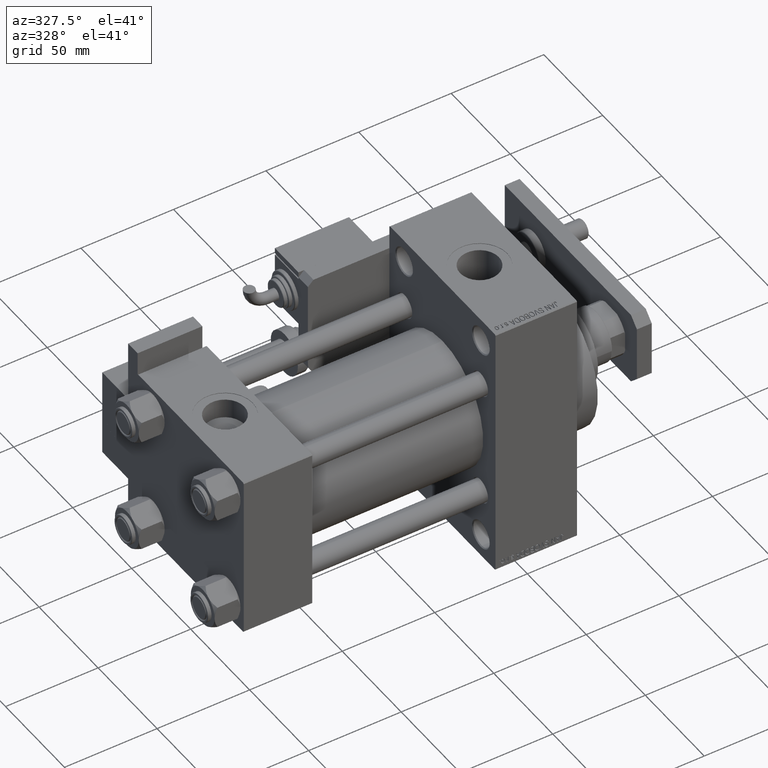
[diagram: clean part render]
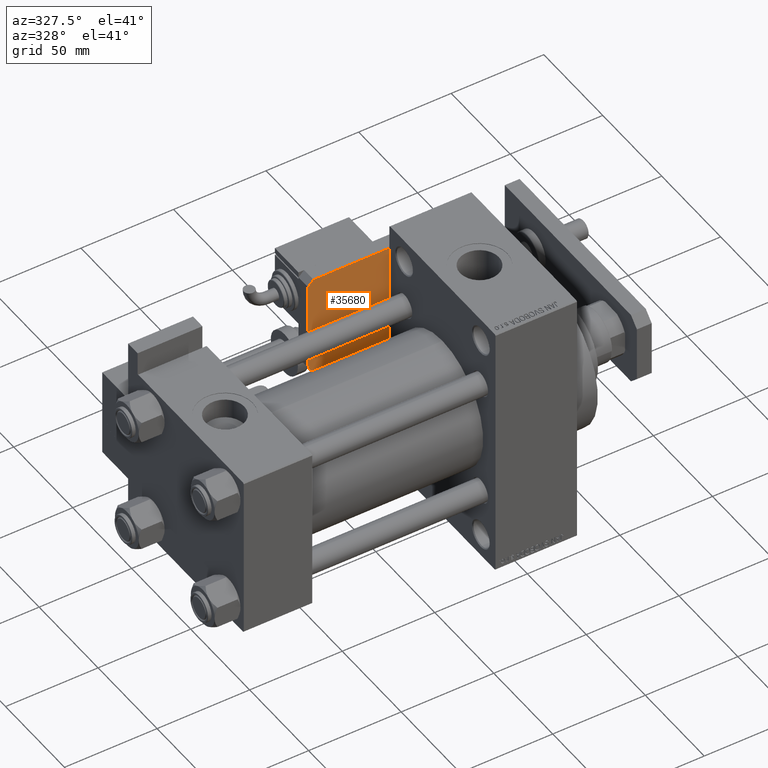
[diagram: same view with one face highlighted and labeled with its STEP entity id]
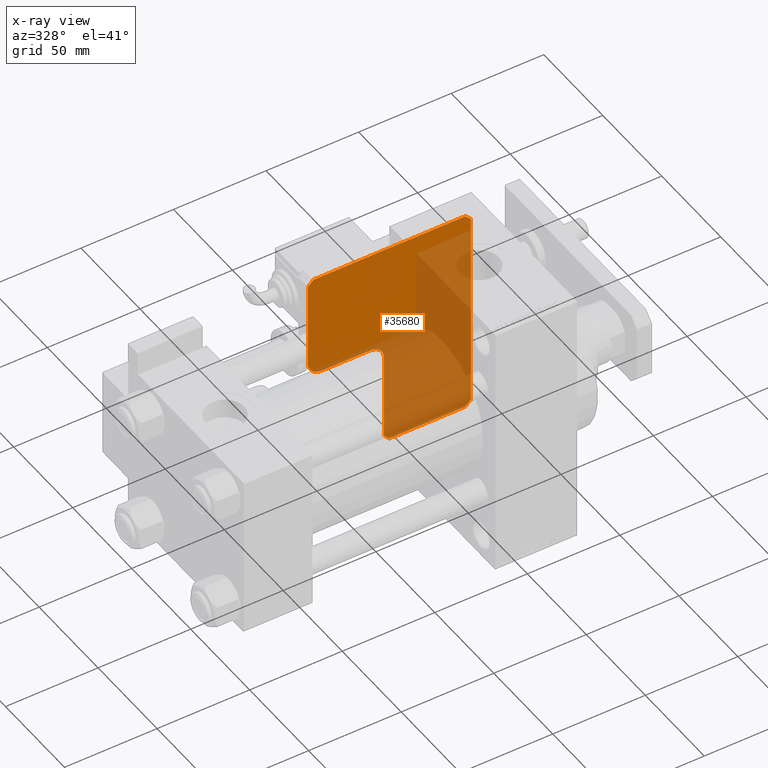
[diagram: x-ray of the same camera — body ghosted, the highlighted face saturated]
A machine part, auxiliary view. The second image highlights one B-rep face of the part: STEP entity #35680.
The next image is the same camera in x-ray: the body ghosted, the highlighted face saturated — about 55% of this face is hidden behind the body in this view.
In plain terms, the highlighted planar face has unit normal (-0, 1, -0).
Its self-contained STEP definition (entity closure, byte-faithful):
#1346 = CARTESIAN_POINT ( 'NONE',  ( 3.000000000000002665, 88.00000000000000000, 0.000000000000000000 ) ) ;
#1990 = LINE ( 'NONE', #27302, #26226 ) ;
#2265 = EDGE_CURVE ( 'NONE', #6764, #45889, #28312, .T. ) ;
#3694 = EDGE_CURVE ( 'NONE', #27532, #51660, #49688, .T. ) ;
#4350 = FACE_OUTER_BOUND ( 'NONE', #34049, .T. ) ;
#4612 = CARTESIAN_POINT ( 'NONE',  ( 112.0000000000000142, 46.99999999999998579, 0.000000000000000000 ) ) ;
#4772 = EDGE_CURVE ( 'NONE', #14834, #8964, #7136, .T. ) ;
#5359 = CARTESIAN_POINT ( 'NONE',  ( 56.99999999999999289, 88.00000000000000000, 0.000000000000000000 ) ) ;
#6052 = EDGE_CURVE ( 'NONE', #14834, #44726, #17625, .T. ) ;
#6764 = VERTEX_POINT ( 'NONE', #40186 ) ;
#7047 = VECTOR ( 'NONE', #16875, 1000.000000000000114 ) ;
#7065 = CARTESIAN_POINT ( 'NONE',  ( 0.000000000000000000, 85.00000000000001421, 0.000000000000000000 ) ) ;
#7136 = LINE ( 'NONE', #24111, #34158 ) ;
#8211 = ORIENTED_EDGE ( 'NONE', *, *, #12161, .F. ) ;
#8964 = VERTEX_POINT ( 'NONE', #35924 ) ;
#9414 = CARTESIAN_POINT ( 'NONE',  ( 112.0000000000000142, 46.99999999999998579, 0.000000000000000000 ) ) ;
#9524 = DIRECTION ( 'NONE',  ( -1.000000000000000000, 0.000000000000000000, 0.000000000000000000 ) ) ;
#9677 = CARTESIAN_POINT ( 'NONE',  ( 49.49999999999999289, 88.00000000000000000, 0.000000000000000000 ) ) ;
#10336 = VERTEX_POINT ( 'NONE', #1346 ) ;
#10813 = CARTESIAN_POINT ( 'NONE',  ( 56.99999999999999289, 46.99999999999998579, 0.000000000000000000 ) ) ;
#10831 = AXIS2_PLACEMENT_3D ( 'NONE', #30517, #46402, #21362 ) ;
#12014 = VECTOR ( 'NONE', #52099, 1000.000000000000114 ) ;
#12161 = EDGE_CURVE ( 'NONE', #23118, #35829, #1990, .T. ) ;
#13803 = EDGE_CURVE ( 'NONE', #17100, #51660, #17764, .T. ) ;
#14584 = ORIENTED_EDGE ( 'NONE', *, *, #24168, .F. ) ;
#14698 = VECTOR ( 'NONE', #35260, 1000.000000000000000 ) ;
#14834 = VERTEX_POINT ( 'NONE', #52205 ) ;
#15943 = CARTESIAN_POINT ( 'NONE',  ( 0.000000000000000000, 85.00000000000001421, 0.000000000000000000 ) ) ;
#16875 = DIRECTION ( 'NONE',  ( 0.7071067811865441310, -0.7071067811865507924, -0.000000000000000000 ) ) ;
#17074 = LINE ( 'NONE', #34030, #37197 ) ;
#17100 = VERTEX_POINT ( 'NONE', #7065 ) ;
#17389 = CARTESIAN_POINT ( 'NONE',  ( 0.000000000000000000, 3.000000000000002665, 0.000000000000000000 ) ) ;
#17625 = LINE ( 'NONE', #34583, #12014 ) ;
#17708 = VECTOR ( 'NONE', #52913, 1000.000000000000000 ) ;
#17764 = LINE ( 'NONE', #39171, #14698 ) ;
#17963 = DIRECTION ( 'NONE',  ( 0.000000000000000000, 1.000000000000000000, 0.000000000000000000 ) ) ;
#18877 = DIRECTION ( 'NONE',  ( 0.000000000000000000, 1.000000000000000000, 0.000000000000000000 ) ) ;
#20886 = CARTESIAN_POINT ( 'NONE',  ( 49.49999999999999289, 80.49999999999998579, 0.000000000000000000 ) ) ;
#21362 = DIRECTION ( 'NONE',  ( 1.000000000000000000, 0.000000000000000000, 0.000000000000000000 ) ) ;
#21577 = VECTOR ( 'NONE', #18877, 1000.000000000000000 ) ;
#21641 = AXIS2_PLACEMENT_3D ( 'NONE', #20886, #54810, #50637 ) ;
#21883 = DIRECTION ( 'NONE',  ( 0.000000000000000000, -0.000000000000000000, 1.000000000000000000 ) ) ;
#23118 = VERTEX_POINT ( 'NONE', #9414 ) ;
#24111 = CARTESIAN_POINT ( 'NONE',  ( 114.9999999999999858, 0.000000000000000000, 0.000000000000000000 ) ) ;
#24168 = EDGE_CURVE ( 'NONE', #27532, #44726, #17074, .T. ) ;
#24779 = EDGE_CURVE ( 'NONE', #23118, #8964, #42713, .T. ) ;
#25141 = EDGE_CURVE ( 'NONE', #27538, #10336, #35940, .T. ) ;
#25691 = DIRECTION ( 'NONE',  ( 1.000000000000000000, 0.000000000000000000, 0.000000000000000000 ) ) ;
#26057 = CARTESIAN_POINT ( 'NONE',  ( 0.000000000000000000, 0.000000000000000000, 0.000000000000000000 ) ) ;
#26226 = VECTOR ( 'NONE', #9524, 1000.000000000000000 ) ;
#27302 = CARTESIAN_POINT ( 'NONE',  ( 114.9999999999999858, 46.99999999999998579, 0.000000000000000000 ) ) ;
#27532 = VERTEX_POINT ( 'NONE', #47245 ) ;
#27538 = VERTEX_POINT ( 'NONE', #9677 ) ;
#28312 = LINE ( 'NONE', #10813, #21577 ) ;
#28392 = CARTESIAN_POINT ( 'NONE',  ( 56.99999999999999289, 80.49999999999997158, 0.000000000000000000 ) ) ;
#28973 = ORIENTED_EDGE ( 'NONE', *, *, #3694, .T. ) ;
#29771 = EDGE_CURVE ( 'NONE', #6764, #35829, #40985, .T. ) ;
#30517 = CARTESIAN_POINT ( 'NONE',  ( 64.50000000000000000, 54.49999999999998579, 0.000000000000000000 ) ) ;
#30716 = ORIENTED_EDGE ( 'NONE', *, *, #13803, .F. ) ;
#32267 = CIRCLE ( 'NONE', #21641, 7.500000000000000000 ) ;
#34030 = CARTESIAN_POINT ( 'NONE',  ( 0.000000000000000000, 0.000000000000000000, 0.000000000000000000 ) ) ;
#34049 = EDGE_LOOP ( 'NONE', ( #30716, #39879, #34885, #54509, #37756, #44056, #8211, #43248, #34947, #34290, #14584, #28973 ) ) ;
#34117 = PLANE ( 'NONE',  #43394 ) ;
#34158 = VECTOR ( 'NONE', #17963, 1000.000000000000000 ) ;
#34290 = ORIENTED_EDGE ( 'NONE', *, *, #6052, .T. ) ;
#34583 = CARTESIAN_POINT ( 'NONE',  ( 114.9999999999999858, 2.999999999999975131, 0.000000000000000000 ) ) ;
#34663 = CARTESIAN_POINT ( 'NONE',  ( 64.50000000000000000, 46.99999999999998579, 0.000000000000000000 ) ) ;
#34885 = ORIENTED_EDGE ( 'NONE', *, *, #25141, .F. ) ;
#34947 = ORIENTED_EDGE ( 'NONE', *, *, #4772, .F. ) ;
#35034 = CARTESIAN_POINT ( 'NONE',  ( 111.9999999999999858, 0.000000000000000000, 0.000000000000000000 ) ) ;
#35260 = DIRECTION ( 'NONE',  ( 0.000000000000000000, -1.000000000000000000, 0.000000000000000000 ) ) ;
#35680 = ADVANCED_FACE ( 'NONE', ( #4350 ), #34117, .F. ) ;
#35829 = VERTEX_POINT ( 'NONE', #34663 ) ;
#35924 = CARTESIAN_POINT ( 'NONE',  ( 114.9999999999999858, 43.99999999999998579, 0.000000000000000000 ) ) ;
#35940 = LINE ( 'NONE', #5359, #17708 ) ;
#36888 = DIRECTION ( 'NONE',  ( -0.7071067811865441310, 0.7071067811865507924, 0.000000000000000000 ) ) ;
#37197 = VECTOR ( 'NONE', #25691, 1000.000000000000000 ) ;
#37756 = ORIENTED_EDGE ( 'NONE', *, *, #2265, .F. ) ;
#38564 = VECTOR ( 'NONE', #36888, 1000.000000000000114 ) ;
#38569 = DIRECTION ( 'NONE',  ( 1.000000000000000000, 0.000000000000000000, -0.000000000000000000 ) ) ;
#39171 = CARTESIAN_POINT ( 'NONE',  ( 0.000000000000000000, 88.00000000000000000, 0.000000000000000000 ) ) ;
#39879 = ORIENTED_EDGE ( 'NONE', *, *, #49503, .T. ) ;
#40186 = CARTESIAN_POINT ( 'NONE',  ( 56.99999999999999289, 54.49999999999998579, 0.000000000000000000 ) ) ;
#40985 = CIRCLE ( 'NONE', #10831, 7.500000000000007105 ) ;
#42713 = LINE ( 'NONE', #4612, #7047 ) ;
#43248 = ORIENTED_EDGE ( 'NONE', *, *, #24779, .T. ) ;
#43394 = AXIS2_PLACEMENT_3D ( 'NONE', #26057, #21883, #38569 ) ;
#44056 = ORIENTED_EDGE ( 'NONE', *, *, #29771, .T. ) ;
#44726 = VERTEX_POINT ( 'NONE', #35034 ) ;
#45889 = VERTEX_POINT ( 'NONE', #28392 ) ;
#45980 = DIRECTION ( 'NONE',  ( 0.7071067811865507924, 0.7071067811865441310, -0.000000000000000000 ) ) ;
#46402 = DIRECTION ( 'NONE',  ( 0.000000000000000000, -0.000000000000000000, 1.000000000000000000 ) ) ;
#47245 = CARTESIAN_POINT ( 'NONE',  ( 2.999999999999975131, 0.000000000000000000, 0.000000000000000000 ) ) ;
#48981 = EDGE_CURVE ( 'NONE', #27538, #45889, #32267, .T. ) ;
#49503 = EDGE_CURVE ( 'NONE', #17100, #10336, #54601, .T. ) ;
#49688 = LINE ( 'NONE', #53575, #38564 ) ;
#50637 = DIRECTION ( 'NONE',  ( 1.000000000000000000, 5.551115123125782702E-15, 0.000000000000000000 ) ) ;
#50936 = VECTOR ( 'NONE', #45980, 1000.000000000000114 ) ;
#51660 = VERTEX_POINT ( 'NONE', #17389 ) ;
#52099 = DIRECTION ( 'NONE',  ( -0.7071067811865507924, -0.7071067811865441310, -0.000000000000000000 ) ) ;
#52205 = CARTESIAN_POINT ( 'NONE',  ( 114.9999999999999858, 2.999999999999975131, 0.000000000000000000 ) ) ;
#52913 = DIRECTION ( 'NONE',  ( -1.000000000000000000, 0.000000000000000000, 0.000000000000000000 ) ) ;
#53575 = CARTESIAN_POINT ( 'NONE',  ( 2.999999999999975131, 0.000000000000000000, 0.000000000000000000 ) ) ;
#54509 = ORIENTED_EDGE ( 'NONE', *, *, #48981, .T. ) ;
#54601 = LINE ( 'NONE', #15943, #50936 ) ;
#54810 = DIRECTION ( 'NONE',  ( -0.000000000000000000, 0.000000000000000000, -1.000000000000000000 ) ) ;